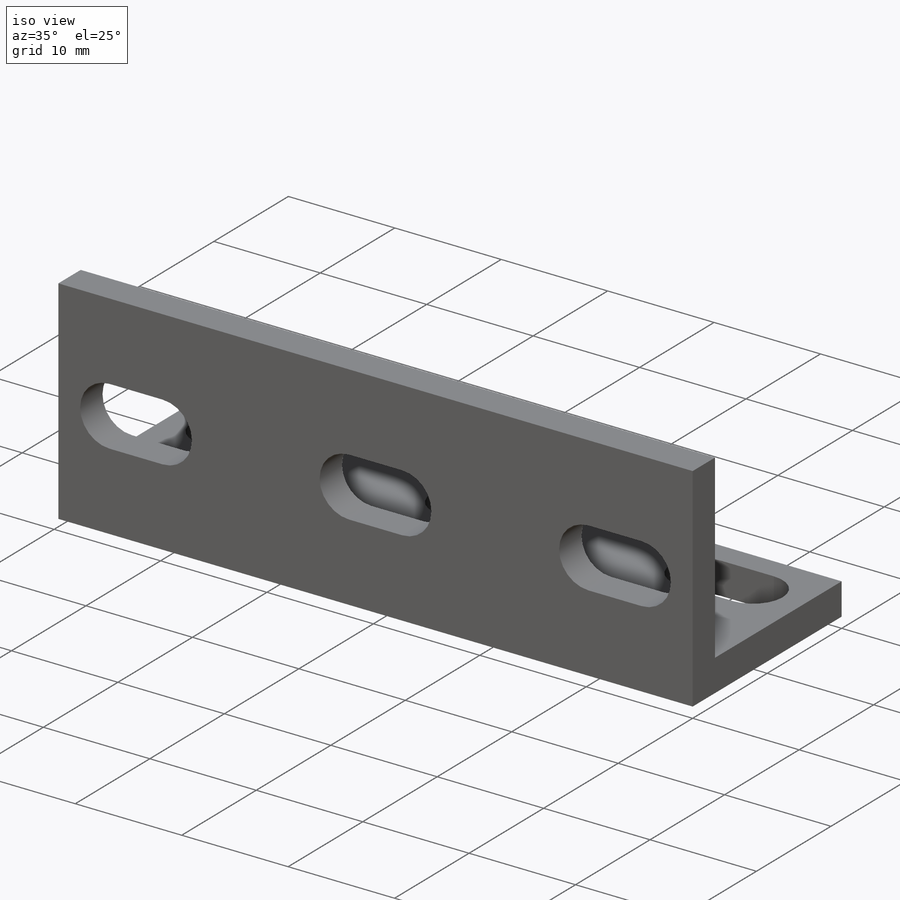
[diagram: iso view]
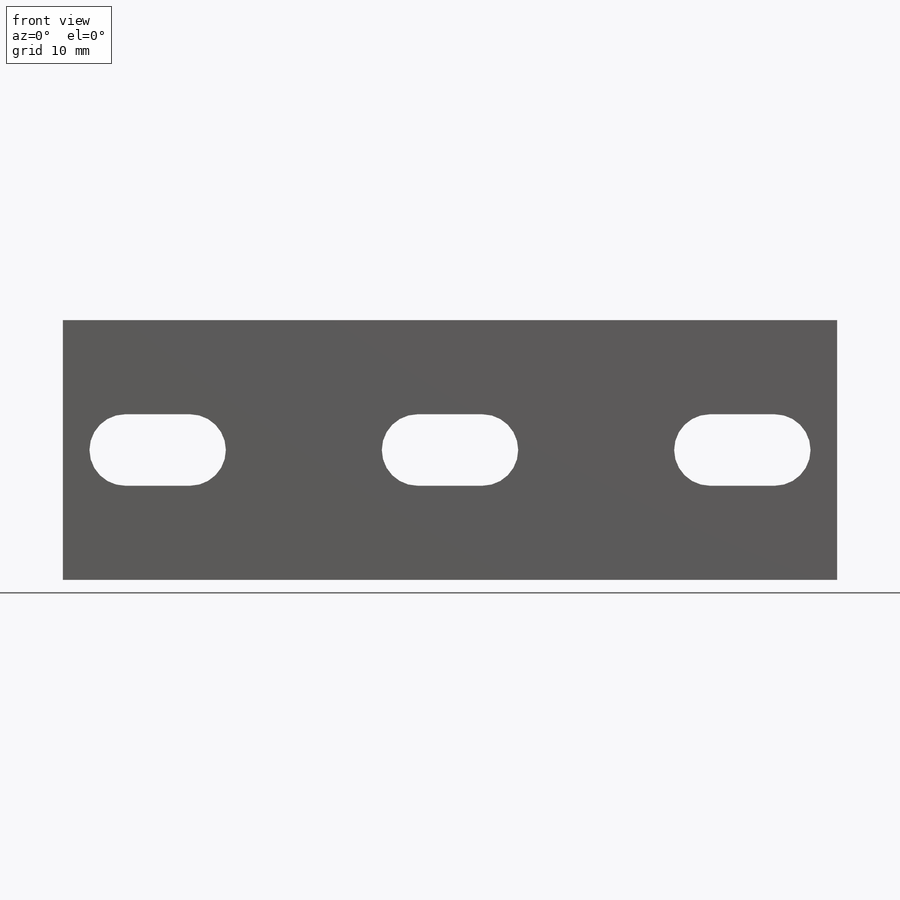
[diagram: front view]
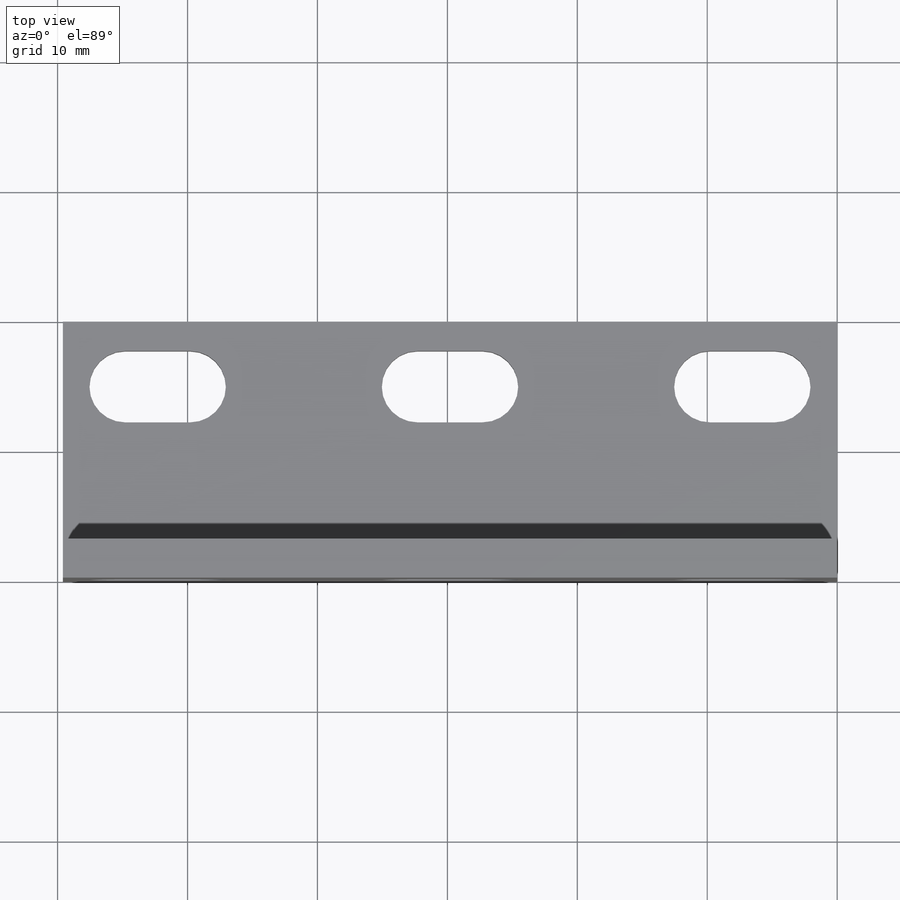
[diagram: top view]
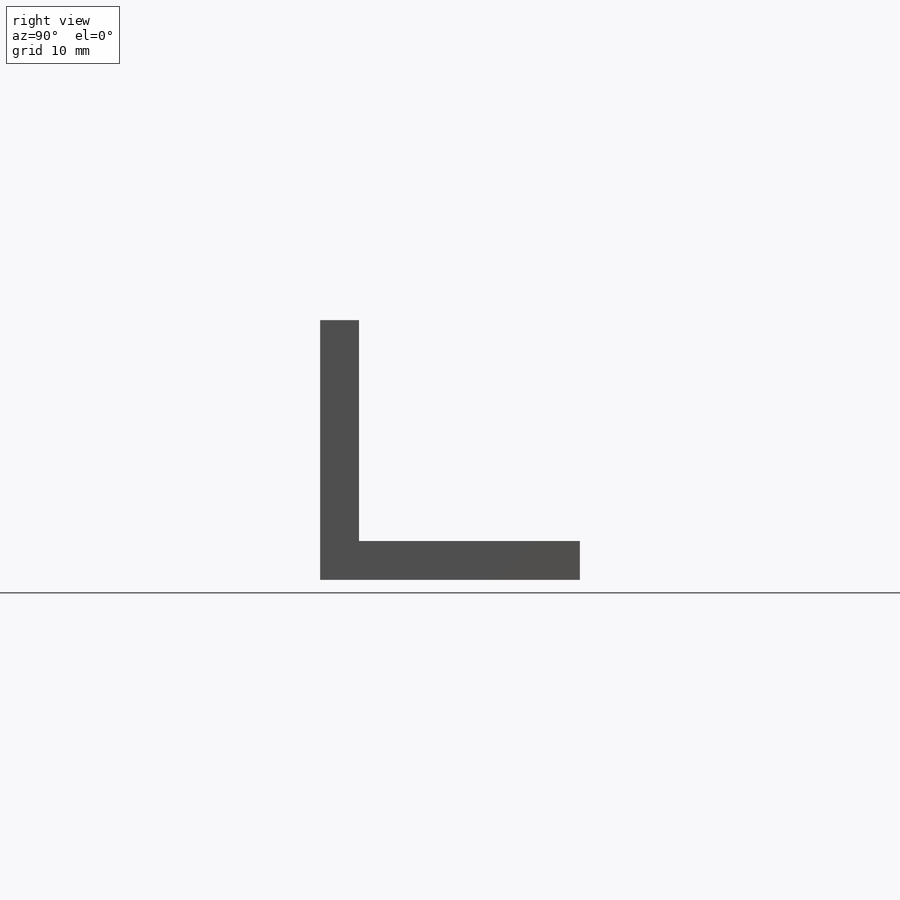
[diagram: right view]
SOLIDWORKS PART (.sldprt)
format: sldprt  version: not decoded by parser v0  size: 191,488 bytes
history: native  units: mm
features: sketch x3, cut_extrude x2, pattern_linear x2, material x1, extrude x1 (+12 scaffold rows collapsed)
feature tree (21):
  scaffold x12  (default folders/planes/origin — collapsed)
  material  "Material <not specified>"
  sketch  "Sketch1"  dims[D1=20.0mm D2=20.0mm D3=3.0mm D4=3.0mm]
  extrude  "Boss-Extrude1"  Depth=59.6mm
  sketch  "Sketch2"  dims[c1.D3=2.75mm c1.D1=5.5mm c1.D2=5.0mm c2.D3=7.25mm]
  cut_extrude  "Cut-Extrude1"  [1 undecoded]
  pattern_linear  "LPattern1"  Count1=2 Count2=2 Spacing1=22.5mm Spacing2=22.5mm
  sketch  "Sketch3"  dims[D1=5.5mm D2=5.0mm D3=2.25mm]
  cut_extrude  "Cut-Extrude2"  [1 undecoded]
  pattern_linear  "LPattern2"  Count1=2 Count2=2 Spacing1=22.5mm Spacing2=22.5mm
decode coverage: 6 of 8 modeling features carry decoded parameters
note: 2 parameter values undecoded
note: suppression state not decoded; provenance and decode notes live in map.json
